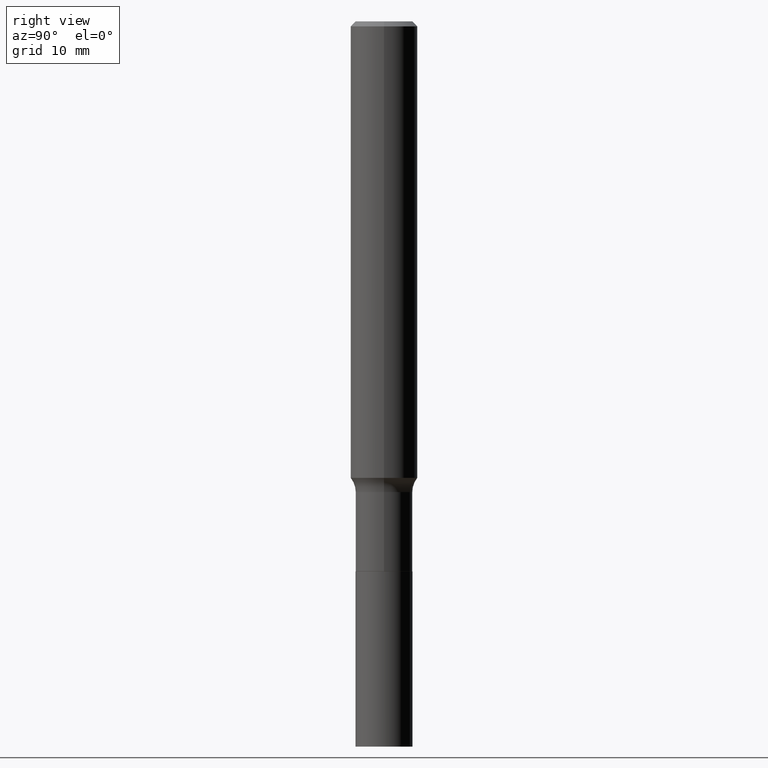
[diagram: clean part render]
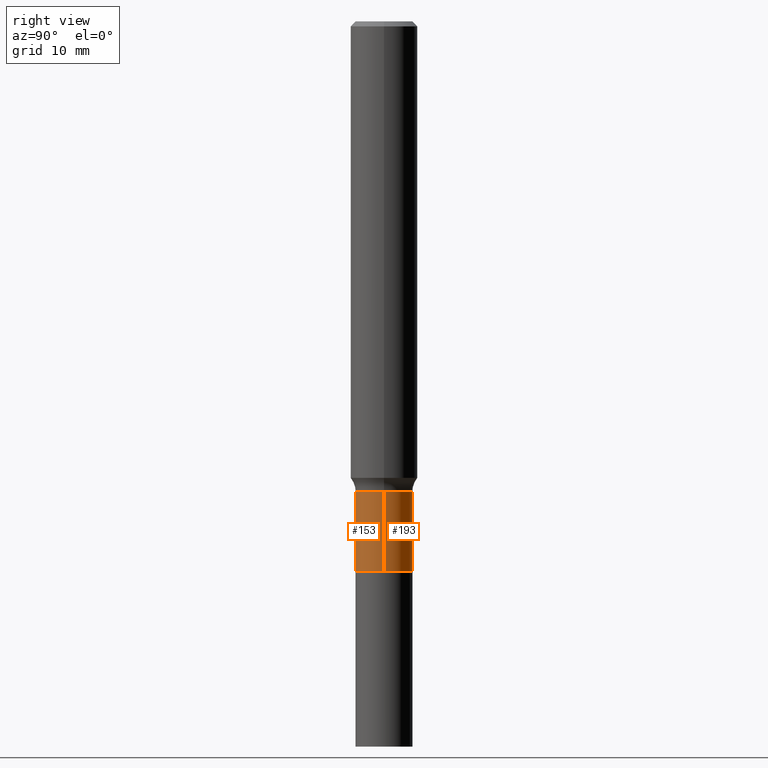
[diagram: same view with one multi-face feature highlighted, each face labeled with its STEP entity id]
A machine part, right view. The highlighted faces form ONE feature: a constant-radius fillet chain: 2 tangent blend faces with common blend radius 2.5527 mm. The faces share edges in the B-rep.
Their STEP definitions:
[1] entity #193 (Cylinder):
#13 = EDGE_LOOP ( 'NONE', ( #335, #410, #83, #302 ) ) ;
#17 = CARTESIAN_POINT ( 'NONE',  ( -0.1004999999999999921, -5.573189571482893851E-15, -1.940600000000000325 ) ) ;
#26 = LINE ( 'NONE', #394, #232 ) ;
#56 = EDGE_CURVE ( 'NONE', #88, #164, #91, .T. ) ;
#63 = DIRECTION ( 'NONE',  ( -2.445468806185136597E-29, 3.491481338843145583E-15, 1.000000000000000000 ) ) ;
#64 = CARTESIAN_POINT ( 'NONE',  ( -0.1004999999999999921, 7.140954494389006308E-16, -4.943529765706180112E-30 ) ) ;
#68 = DIRECTION ( 'NONE',  ( -2.445468806185136877E-29, 3.491481338843145188E-15, 1.000000000000000000 ) ) ;
#73 = CYLINDRICAL_SURFACE ( 'NONE', #432, 0.1004999999999999921 ) ;
#82 = DIRECTION ( 'NONE',  ( 1.000000000000000000, -6.982962677686272233E-15, 0.000000000000000000 ) ) ;
#83 = ORIENTED_EDGE ( 'NONE', *, *, #56, .F. ) ;
#88 = VERTEX_POINT ( 'NONE', #191 ) ;
#91 = CIRCLE ( 'NONE', #130, 0.1004999999999999782 ) ;
#104 = LINE ( 'NONE', #64, #249 ) ;
#128 = DIRECTION ( 'NONE',  ( -2.445468806185136597E-29, 3.491481338843145583E-15, 1.000000000000000000 ) ) ;
#130 = AXIS2_PLACEMENT_3D ( 'NONE', #330, #438, #82 ) ;
#134 = CIRCLE ( 'NONE', #150, 0.1004999999999999921 ) ;
#141 = CARTESIAN_POINT ( 'NONE',  ( 0.1004999999999999921, -7.477356435266479120E-15, -1.940600000000000325 ) ) ;
#150 = AXIS2_PLACEMENT_3D ( 'NONE', #349, #63, #221 ) ;
#155 = VERTEX_POINT ( 'NONE', #141 ) ;
#164 = VERTEX_POINT ( 'NONE', #393 ) ;
#183 = FACE_OUTER_BOUND ( 'NONE', #13, .T. ) ;
#191 = CARTESIAN_POINT ( 'NONE',  ( 0.1004999999999999782, -6.500789104792050580E-15, -1.660900000000000043 ) ) ;
#193 = ADVANCED_FACE ( 'NONE', ( #183 ), #73, .T. ) ;
#221 = DIRECTION ( 'NONE',  ( 1.000000000000000000, -6.982962677686270655E-15, 0.000000000000000000 ) ) ;
#232 = VECTOR ( 'NONE', #68, 39.37007874015748143 ) ;
#249 = VECTOR ( 'NONE', #256, 39.37007874015748143 ) ;
#256 = DIRECTION ( 'NONE',  ( -2.445468806185136877E-29, 3.491481338843145188E-15, 1.000000000000000000 ) ) ;
#302 = ORIENTED_EDGE ( 'NONE', *, *, #353, .F. ) ;
#325 = EDGE_CURVE ( 'NONE', #411, #164, #104, .T. ) ;
#330 = CARTESIAN_POINT ( 'NONE',  ( 4.061679140192893636E-29, -5.799001355684580113E-15, -1.660900000000000043 ) ) ;
#335 = ORIENTED_EDGE ( 'NONE', *, *, #421, .T. ) ;
#349 = CARTESIAN_POINT ( 'NONE',  ( 4.745676765282876629E-29, -6.775568686159008653E-15, -1.940600000000000325 ) ) ;
#353 = EDGE_CURVE ( 'NONE', #155, #88, #26, .T. ) ;
#360 = DIRECTION ( 'NONE',  ( 1.000000000000000000, -6.982962677686266711E-15, 4.876176775795935793E-29 ) ) ;
#393 = CARTESIAN_POINT ( 'NONE',  ( -0.1004999999999999782, -5.573189571482893851E-15, -1.660900000000000043 ) ) ;
#394 = CARTESIAN_POINT ( 'NONE',  ( 0.1004999999999999921, -7.017877491074697768E-16, 4.900557659674914995E-30 ) ) ;
#410 = ORIENTED_EDGE ( 'NONE', *, *, #325, .T. ) ;
#411 = VERTEX_POINT ( 'NONE', #17 ) ;
#414 = CARTESIAN_POINT ( 'NONE',  ( 0.000000000000000000, 0.000000000000000000, 0.000000000000000000 ) ) ;
#421 = EDGE_CURVE ( 'NONE', #155, #411, #134, .T. ) ;
#432 = AXIS2_PLACEMENT_3D ( 'NONE', #414, #128, #360 ) ;
#438 = DIRECTION ( 'NONE',  ( -2.445468806185136597E-29, 3.491481338843145583E-15, 1.000000000000000000 ) ) ;
[2] entity #153 (Cylinder):
#2 = DIRECTION ( 'NONE',  ( -2.445468806185136597E-29, 3.491481338843145583E-15, 1.000000000000000000 ) ) ;
#12 = CIRCLE ( 'NONE', #268, 0.1004999999999999921 ) ;
#17 = CARTESIAN_POINT ( 'NONE',  ( -0.1004999999999999921, -5.573189571482893851E-15, -1.940600000000000325 ) ) ;
#26 = LINE ( 'NONE', #394, #232 ) ;
#47 = ORIENTED_EDGE ( 'NONE', *, *, #353, .T. ) ;
#52 = CYLINDRICAL_SURFACE ( 'NONE', #392, 0.1004999999999999921 ) ;
#64 = CARTESIAN_POINT ( 'NONE',  ( -0.1004999999999999921, 7.140954494389006308E-16, -4.943529765706180112E-30 ) ) ;
#67 = DIRECTION ( 'NONE',  ( -2.445468806185136597E-29, 3.491481338843145583E-15, 1.000000000000000000 ) ) ;
#68 = DIRECTION ( 'NONE',  ( -2.445468806185136877E-29, 3.491481338843145188E-15, 1.000000000000000000 ) ) ;
#88 = VERTEX_POINT ( 'NONE', #191 ) ;
#104 = LINE ( 'NONE', #64, #249 ) ;
#108 = EDGE_CURVE ( 'NONE', #411, #155, #12, .T. ) ;
#136 = DIRECTION ( 'NONE',  ( 1.000000000000000000, -6.982962677686272233E-15, 0.000000000000000000 ) ) ;
#139 = EDGE_CURVE ( 'NONE', #164, #88, #358, .T. ) ;
#141 = CARTESIAN_POINT ( 'NONE',  ( 0.1004999999999999921, -7.477356435266479120E-15, -1.940600000000000325 ) ) ;
#153 = ADVANCED_FACE ( 'NONE', ( #223 ), #52, .T. ) ;
#155 = VERTEX_POINT ( 'NONE', #141 ) ;
#156 = AXIS2_PLACEMENT_3D ( 'NONE', #172, #286, #136 ) ;
#164 = VERTEX_POINT ( 'NONE', #393 ) ;
#172 = CARTESIAN_POINT ( 'NONE',  ( 4.061679140192893636E-29, -5.799001355684580113E-15, -1.660900000000000043 ) ) ;
#191 = CARTESIAN_POINT ( 'NONE',  ( 0.1004999999999999782, -6.500789104792050580E-15, -1.660900000000000043 ) ) ;
#207 = DIRECTION ( 'NONE',  ( 1.000000000000000000, -6.982962677686266711E-15, 4.876176775795935793E-29 ) ) ;
#223 = FACE_OUTER_BOUND ( 'NONE', #243, .T. ) ;
#232 = VECTOR ( 'NONE', #68, 39.37007874015748143 ) ;
#243 = EDGE_LOOP ( 'NONE', ( #308, #339, #47, #406 ) ) ;
#249 = VECTOR ( 'NONE', #256, 39.37007874015748143 ) ;
#256 = DIRECTION ( 'NONE',  ( -2.445468806185136877E-29, 3.491481338843145188E-15, 1.000000000000000000 ) ) ;
#268 = AXIS2_PLACEMENT_3D ( 'NONE', #326, #2, #295 ) ;
#286 = DIRECTION ( 'NONE',  ( -2.445468806185136597E-29, 3.491481338843145583E-15, 1.000000000000000000 ) ) ;
#295 = DIRECTION ( 'NONE',  ( 1.000000000000000000, -6.982962677686270655E-15, 0.000000000000000000 ) ) ;
#308 = ORIENTED_EDGE ( 'NONE', *, *, #325, .F. ) ;
#325 = EDGE_CURVE ( 'NONE', #411, #164, #104, .T. ) ;
#326 = CARTESIAN_POINT ( 'NONE',  ( 4.745676765282876629E-29, -6.775568686159008653E-15, -1.940600000000000325 ) ) ;
#339 = ORIENTED_EDGE ( 'NONE', *, *, #108, .T. ) ;
#353 = EDGE_CURVE ( 'NONE', #155, #88, #26, .T. ) ;
#358 = CIRCLE ( 'NONE', #156, 0.1004999999999999782 ) ;
#392 = AXIS2_PLACEMENT_3D ( 'NONE', #396, #67, #207 ) ;
#393 = CARTESIAN_POINT ( 'NONE',  ( -0.1004999999999999782, -5.573189571482893851E-15, -1.660900000000000043 ) ) ;
#394 = CARTESIAN_POINT ( 'NONE',  ( 0.1004999999999999921, -7.017877491074697768E-16, 4.900557659674914995E-30 ) ) ;
#396 = CARTESIAN_POINT ( 'NONE',  ( 0.000000000000000000, 0.000000000000000000, 0.000000000000000000 ) ) ;
#406 = ORIENTED_EDGE ( 'NONE', *, *, #139, .F. ) ;
#411 = VERTEX_POINT ( 'NONE', #17 ) ;